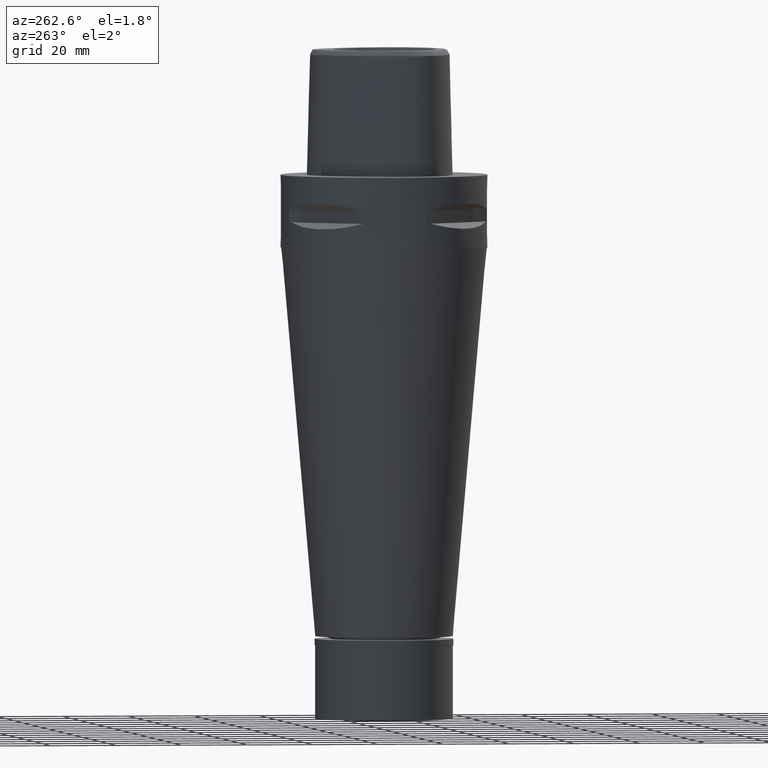
[diagram: clean part render]
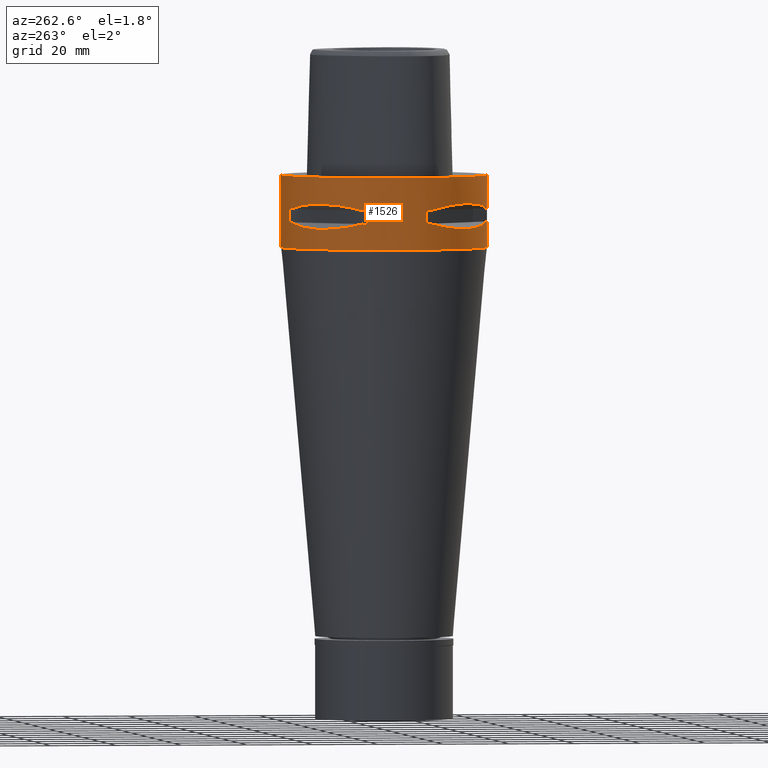
[diagram: same view with one face highlighted and labeled with its STEP entity id]
A machine part, auxiliary view. The second image highlights one B-rep face of the part: STEP entity #1526.
In plain terms, the highlighted cylindrical surface (partial cylindrical patch) has radius 31.5 mm, axis along (0, 0, -1).
Its self-contained STEP definition (entity closure, byte-faithful):
#10 = CARTESIAN_POINT ( 'NONE',  ( -29.31542262584164504, -11.58970337495982328, -14.35229357167352049 ) ) ;
#29 = CARTESIAN_POINT ( 'NONE',  ( -28.91382665368951876, 12.73197616788052500, -14.65467361753852060 ) ) ;
#41 = DIRECTION ( 'NONE',  ( 0.0000000000000000000, 0.0000000000000000000, -1.000000000000000000 ) ) ;
#47 = DIRECTION ( 'NONE',  ( -0.3316748332540863653, 0.9433937698468619626, 0.0000000000000000000 ) ) ;
#66 = DIRECTION ( 'NONE',  ( -0.9584925938322735872, -0.2851174276831918153, 0.0000000000000000000 ) ) ;
#89 = ORIENTED_EDGE ( 'NONE', *, *, #610, .T. ) ;
#107 = CIRCLE ( 'NONE', #4019, 31.50000000000000711 ) ;
#167 = B_SPLINE_CURVE_WITH_KNOTS ( 'NONE', 3,
 ( #5047, #2629, #3066, #3764, #1530, #1107, #5023, #2599, #3818, #4200 ),
 .UNSPECIFIED., .F., .F.,
 ( 4, 2, 2, 2, 4 ),
 ( 0.0000000000000000000, 0.2500000000000000000, 0.5000000000000000000, 0.7500000000000000000, 1.000000000000000000 ),
 .UNSPECIFIED. ) ;
#168 = ORIENTED_EDGE ( 'NONE', *, *, #2983, .T. ) ;
#172 = CARTESIAN_POINT ( 'NONE',  ( -30.19251670572000279, 8.981198972017999438, -9.950000000000001066 ) ) ;
#250 = CIRCLE ( 'NONE', #918, 31.50000000000000711 ) ;
#259 = CARTESIAN_POINT ( 'NONE',  ( -10.44775724750000023, 29.71690375017999841, -14.05000000000000071 ) ) ;
#264 = EDGE_CURVE ( 'NONE', #4474, #3097, #5006, .T. ) ;
#310 = DIRECTION ( 'NONE',  ( 0.0000000000000000000, 0.0000000000000000000, -1.000000000000000000 ) ) ;
#334 = CARTESIAN_POINT ( 'NONE',  ( -27.11872488588860008, -16.03138450079452682, -15.26880420107959146 ) ) ;
#365 = CARTESIAN_POINT ( 'NONE',  ( -26.70521063584408950, -16.70616724746141202, -15.37546661817775373 ) ) ;
#406 = CARTESIAN_POINT ( 'NONE',  ( -26.48642424310478205, 17.05047092244226903, -15.42670883407652305 ) ) ;
#411 = VERTEX_POINT ( 'NONE', #3479 ) ;
#412 = ORIENTED_EDGE ( 'NONE', *, *, #3881, .T. ) ;
#427 = VERTEX_POINT ( 'NONE', #440 ) ;
#440 = CARTESIAN_POINT ( 'NONE',  ( -8.981198972017999438, 30.19251670572000279, -14.05000000000000071 ) ) ;
#459 = CARTESIAN_POINT ( 'NONE',  ( -30.19251670572000279, -8.981198972017999438, -14.05000000000000071 ) ) ;
#478 = VERTEX_POINT ( 'NONE', #172 ) ;
#479 = DIRECTION ( 'NONE',  ( -0.9433937698468619626, -0.3316748332540863653, 0.0000000000000000000 ) ) ;
#483 = CARTESIAN_POINT ( 'NONE',  ( -23.90617837147174640, -20.64154884328075212, -8.160627831309682279 ) ) ;
#488 = CARTESIAN_POINT ( 'NONE',  ( 0.0000000000000000000, 31.50000000000000000, 0.0000000000000000000 ) ) ;
#531 = CARTESIAN_POINT ( 'NONE',  ( 0.0000000000000000000, 0.0000000000000000000, -22.00000000000000000 ) ) ;
#570 = CARTESIAN_POINT ( 'NONE',  ( -8.981198972017999438, -30.19251670572000279, -9.950000000000001066 ) ) ;
#584 = CIRCLE ( 'NONE', #4841, 31.50000000000001776 ) ;
#610 = EDGE_CURVE ( 'NONE', #3657, #4400, #250, .T. ) ;
#612 = ORIENTED_EDGE ( 'NONE', *, *, #1086, .T. ) ;
#616 = CARTESIAN_POINT ( 'NONE',  ( 0.0000000000000000000, 0.0000000000000000000, -14.05000000000000071 ) ) ;
#672 = CARTESIAN_POINT ( 'NONE',  ( -14.89252659056261052, -27.86285265926905197, -15.10765629751539230 ) ) ;
#710 = CARTESIAN_POINT ( 'NONE',  ( -16.80193241490601253, 26.64486562695759631, -15.38992683735703437 ) ) ;
#718 = CARTESIAN_POINT ( 'NONE',  ( -29.71690375017999841, -10.44775724750000023, -14.05000000000000071 ) ) ;
#723 = DIRECTION ( 'NONE',  ( 0.0000000000000000000, -1.000000000000000000, 0.0000000000000000000 ) ) ;
#725 = AXIS2_PLACEMENT_3D ( 'NONE', #616, #4533, #1411 ) ;
#729 = CYLINDRICAL_SURFACE ( 'NONE', #3626, 31.50000000000000000 ) ;
#747 = CARTESIAN_POINT ( 'NONE',  ( -20.18579225686149314, -24.23018836745477245, -15.78559396979075125 ) ) ;
#761 = CARTESIAN_POINT ( 'NONE',  ( 0.0000000000000000000, 0.0000000000000000000, -9.950000000000001066 ) ) ;
#778 = ORIENTED_EDGE ( 'NONE', *, *, #4176, .T. ) ;
#850 = ORIENTED_EDGE ( 'NONE', *, *, #1740, .F. ) ;
#859 = CARTESIAN_POINT ( 'NONE',  ( 0.0000000000000000000, 0.0000000000000000000, -14.05000000000000071 ) ) ;
#877 = VERTEX_POINT ( 'NONE', #4625 ) ;
#881 = DIRECTION ( 'NONE',  ( 0.0000000000000000000, 0.0000000000000000000, 1.000000000000000000 ) ) ;
#902 = ORIENTED_EDGE ( 'NONE', *, *, #1364, .T. ) ;
#918 = AXIS2_PLACEMENT_3D ( 'NONE', #2447, #1229, #2882 ) ;
#954 = DIRECTION ( 'NONE',  ( -0.2851174276831918153, 0.9584925938322735872, 0.0000000000000000000 ) ) ;
#1010 = ORIENTED_EDGE ( 'NONE', *, *, #264, .F. ) ;
#1026 = CARTESIAN_POINT ( 'NONE',  ( -11.58970337494912251, 29.31542262584540737, -14.35229357167066233 ) ) ;
#1086 = EDGE_CURVE ( 'NONE', #4889, #2898, #1330, .T. ) ;
#1091 = CARTESIAN_POINT ( 'NONE',  ( -17.14106442934748742, -26.42800887047532754, -15.43984550238493547 ) ) ;
#1104 = CARTESIAN_POINT ( 'NONE',  ( -16.86571563436660171, 26.60451452154748608, -15.39949295786010097 ) ) ;
#1107 = CARTESIAN_POINT ( 'NONE',  ( -23.90617837147173930, 20.64154884328075923, -8.160613588465018609 ) ) ;
#1114 = CARTESIAN_POINT ( 'NONE',  ( -23.89673728055697310, -20.65093790435582122, -15.83935804901768307 ) ) ;
#1138 = CARTESIAN_POINT ( 'NONE',  ( -17.76952662671988392, -26.01217882834739470, -15.52665221626113912 ) ) ;
#1148 = FACE_BOUND ( 'NONE', #1696, .T. ) ;
#1157 = VECTOR ( 'NONE', #2820, 1000.000000000000000 ) ;
#1166 = CARTESIAN_POINT ( 'NONE',  ( -10.44775724750000023, -29.71690375017999841, -14.05000000000000071 ) ) ;
#1176 = AXIS2_PLACEMENT_3D ( 'NONE', #859, #1598, #479 ) ;
#1229 = DIRECTION ( 'NONE',  ( 0.0000000000000000000, 0.0000000000000000000, 1.000000000000000000 ) ) ;
#1242 = CARTESIAN_POINT ( 'NONE',  ( -30.19251670572000279, 8.981198972019999616, -14.05000000000000071 ) ) ;
#1246 = VECTOR ( 'NONE', #3136, 1000.000000000000000 ) ;
#1254 = CARTESIAN_POINT ( 'NONE',  ( -28.92474506844683901, -12.70092055730904690, -9.353547358226721897 ) ) ;
#1279 = EDGE_LOOP ( 'NONE', ( #89, #1334, #168, #4571, #778, #850, #4936, #412 ) ) ;
#1310 = CIRCLE ( 'NONE', #725, 31.50000000000001776 ) ;
#1330 = LINE ( 'NONE', #488, #1805 ) ;
#1334 = ORIENTED_EDGE ( 'NONE', *, *, #3469, .F. ) ;
#1364 = EDGE_CURVE ( 'NONE', #877, #478, #107, .T. ) ;
#1372 = LINE ( 'NONE', #3214, #1157 ) ;
#1390 = CARTESIAN_POINT ( 'NONE',  ( -10.44775724750000023, -29.71690375017999841, -9.949999999998999201 ) ) ;
#1411 = DIRECTION ( 'NONE',  ( -0.9584925938322735872, 0.2851174276831918153, 0.0000000000000000000 ) ) ;
#1499 = CARTESIAN_POINT ( 'NONE',  ( -26.54368690921645069, 16.96123479564930747, -15.41365572341317147 ) ) ;
#1516 = EDGE_CURVE ( 'NONE', #4474, #427, #4914, .T. ) ;
#1526 = ADVANCED_FACE ( 'NONE', ( #2669, #1148, #4238 ), #729, .T. ) ;
#1530 = CARTESIAN_POINT ( 'NONE',  ( -20.64154884328076989, 23.90617837147172864, -8.160627831309682279 ) ) ;
#1538 = LINE ( 'NONE', #2719, #1246 ) ;
#1540 = VECTOR ( 'NONE', #41, 1000.000000000000000 ) ;
#1573 = VERTEX_POINT ( 'NONE', #3969 ) ;
#1591 = VERTEX_POINT ( 'NONE', #459 ) ;
#1598 = DIRECTION ( 'NONE',  ( 0.0000000000000000000, 0.0000000000000000000, -1.000000000000000000 ) ) ;
#1605 = CARTESIAN_POINT ( 'NONE',  ( -16.03138450078630584, 27.11872488589149199, -15.26880420107739234 ) ) ;
#1622 = DIRECTION ( 'NONE',  ( -0.2851174276831918153, -0.9584925938322735872, 0.0000000000000000000 ) ) ;
#1696 = EDGE_LOOP ( 'NONE', ( #902, #4568, #2127, #1010, #3320, #2313, #2839, #2393 ) ) ;
#1740 = EDGE_CURVE ( 'NONE', #2030, #1591, #1372, .T. ) ;
#1758 = CARTESIAN_POINT ( 'NONE',  ( -10.44775724750000023, -29.71690375017999841, -9.949999999998999201 ) ) ;
#1805 = VECTOR ( 'NONE', #4383, 1000.000000000000000 ) ;
#1841 = CARTESIAN_POINT ( 'NONE',  ( -26.64486562695712379, -16.80193241490734835, -15.38992683735741451 ) ) ;
#1875 = ORIENTED_EDGE ( 'NONE', *, *, #4105, .T. ) ;
#1884 = CARTESIAN_POINT ( 'NONE',  ( -29.71690375017999841, 10.44775724750000023, -14.05000000000000071 ) ) ;
#1892 = AXIS2_PLACEMENT_3D ( 'NONE', #3553, #3942, #47 ) ;
#1900 = CARTESIAN_POINT ( 'NONE',  ( -26.60451452154724805, -16.86571563436727317, -15.39949295786030348 ) ) ;
#1908 = CARTESIAN_POINT ( 'NONE',  ( 0.0000000000000000000, 0.0000000000000000000, 7.875000000000000000 ) ) ;
#1946 = CARTESIAN_POINT ( 'NONE',  ( -27.64634172017658642, -15.11986997311774417, -15.11207862404057423 ) ) ;
#1953 = CIRCLE ( 'NONE', #2925, 31.50000000000001776 ) ;
#1984 = DIRECTION ( 'NONE',  ( 0.0000000000000000000, 0.0000000000000000000, -1.000000000000000000 ) ) ;
#2005 = CARTESIAN_POINT ( 'NONE',  ( -8.981198972019999616, -30.19251670572000279, -14.05000000000000071 ) ) ;
#2030 = VERTEX_POINT ( 'NONE', #4250 ) ;
#2065 = CARTESIAN_POINT ( 'NONE',  ( -27.88214534470564132, -14.84422749199033120, -8.906206096497937708 ) ) ;
#2082 = DIRECTION ( 'NONE',  ( 0.0000000000000000000, 0.0000000000000000000, 1.000000000000000000 ) ) ;
#2099 = DIRECTION ( 'NONE',  ( 0.0000000000000000000, 0.0000000000000000000, 1.000000000000000000 ) ) ;
#2127 = ORIENTED_EDGE ( 'NONE', *, *, #4810, .T. ) ;
#2129 = CARTESIAN_POINT ( 'NONE',  ( -20.64154884328073081, -23.90617837147176061, -8.160613588465020385 ) ) ;
#2174 = CARTESIAN_POINT ( 'NONE',  ( -29.71690375017999841, 10.44775724750000023, -14.05000000000000071 ) ) ;
#2209 = EDGE_CURVE ( 'NONE', #3140, #478, #4399, .T. ) ;
#2284 = DIRECTION ( 'NONE',  ( 0.0000000000000000000, 0.0000000000000000000, -1.000000000000000000 ) ) ;
#2291 = CARTESIAN_POINT ( 'NONE',  ( -13.25636937904505785, 28.62019653468586355, -14.74888225541535292 ) ) ;
#2306 = CARTESIAN_POINT ( 'NONE',  ( -18.59229662065117594, -25.43927894891756125, -15.62866126334438732 ) ) ;
#2313 = ORIENTED_EDGE ( 'NONE', *, *, #3150, .F. ) ;
#2316 = DIRECTION ( 'NONE',  ( 0.0000000000000000000, -1.000000000000000000, 0.0000000000000000000 ) ) ;
#2320 = CARTESIAN_POINT ( 'NONE',  ( -18.86897208075099996, 25.32725744466366891, -15.69588095933659488 ) ) ;
#2393 = ORIENTED_EDGE ( 'NONE', *, *, #5033, .T. ) ;
#2414 = CARTESIAN_POINT ( 'NONE',  ( 0.0000000000000000000, 0.0000000000000000000, -9.950000000000001066 ) ) ;
#2447 = CARTESIAN_POINT ( 'NONE',  ( 0.0000000000000000000, 0.0000000000000000000, -9.950000000000001066 ) ) ;
#2475 = CIRCLE ( 'NONE', #1176, 31.50000000000000711 ) ;
#2483 = CARTESIAN_POINT ( 'NONE',  ( -10.44775724750000023, 29.71690375017999841, -9.949999999998999201 ) ) ;
#2506 = CARTESIAN_POINT ( 'NONE',  ( -10.44775724750000023, -29.71690375017999841, -14.05000000000000071 ) ) ;
#2543 = VECTOR ( 'NONE', #2099, 1000.000000000000000 ) ;
#2553 = VERTEX_POINT ( 'NONE', #4467 ) ;
#2599 = CARTESIAN_POINT ( 'NONE',  ( -27.88210502983991645, 14.84430321578710199, -8.906184731967039525 ) ) ;
#2629 = CARTESIAN_POINT ( 'NONE',  ( -12.70092055730904868, 28.92474506844682125, -9.353547358226720121 ) ) ;
#2650 = CARTESIAN_POINT ( 'NONE',  ( -15.11986997310366299, 27.64634172018154246, -15.11207862403683144 ) ) ;
#2669 = FACE_OUTER_BOUND ( 'NONE', #5028, .T. ) ;
#2682 = CARTESIAN_POINT ( 'NONE',  ( -16.96123479564944247, -26.54368690921640450, -15.41365572341321766 ) ) ;
#2703 = AXIS2_PLACEMENT_3D ( 'NONE', #5059, #310, #723 ) ;
#2717 = CARTESIAN_POINT ( 'NONE',  ( -12.73197616787212993, -28.91382665369246752, -14.65467361753630549 ) ) ;
#2719 = CARTESIAN_POINT ( 'NONE',  ( -8.981198972017999438, 30.19251670572000279, -9.950000000000001066 ) ) ;
#2731 = CARTESIAN_POINT ( 'NONE',  ( -16.89910283486523923, 26.58330558444462355, -15.40446471307224741 ) ) ;
#2747 = EDGE_CURVE ( 'NONE', #3342, #4889, #4182, .T. ) ;
#2782 = VECTOR ( 'NONE', #3971, 1000.000000000000000 ) ;
#2791 = LINE ( 'NONE', #4777, #1540 ) ;
#2793 = CIRCLE ( 'NONE', #3537, 31.50000000000000000 ) ;
#2820 = DIRECTION ( 'NONE',  ( 0.0000000000000000000, 0.0000000000000000000, -1.000000000000000000 ) ) ;
#2839 = ORIENTED_EDGE ( 'NONE', *, *, #4783, .T. ) ;
#2882 = DIRECTION ( 'NONE',  ( -0.3316748332540863653, -0.9433937698468619626, 0.0000000000000000000 ) ) ;
#2898 = VERTEX_POINT ( 'NONE', #3600 ) ;
#2925 = AXIS2_PLACEMENT_3D ( 'NONE', #3213, #881, #954 ) ;
#2962 = CARTESIAN_POINT ( 'NONE',  ( -10.44775724750000023, 29.71690375017999841, -14.05000000000000071 ) ) ;
#2966 = B_SPLINE_CURVE_WITH_KNOTS ( 'NONE', 3,
 ( #4762, #1254, #2065, #4378, #483, #2129, #4858, #3370, #3703, #1390 ),
 .UNSPECIFIED., .F., .F.,
 ( 4, 2, 2, 2, 4 ),
 ( 0.0000000000000000000, 0.2500000000000000555, 0.5000000000000001110, 0.7500000000000002220, 1.000000000000000000 ),
 .UNSPECIFIED. ) ;
#2983 = EDGE_CURVE ( 'NONE', #3272, #4786, #584, .T. ) ;
#2994 = CARTESIAN_POINT ( 'NONE',  ( -17.35163608579770766, -26.29071741523690875, -15.46976201925451022 ) ) ;
#3063 = CARTESIAN_POINT ( 'NONE',  ( -23.08532645888177015, 21.46242677077824368, -15.83938991065229196 ) ) ;
#3066 = CARTESIAN_POINT ( 'NONE',  ( -14.84422749199032943, 27.88214534470564132, -8.906206096497939484 ) ) ;
#3089 = CARTESIAN_POINT ( 'NONE',  ( -24.23018836745557181, 20.18579225685711265, -15.78559396978928397 ) ) ;
#3097 = VERTEX_POINT ( 'NONE', #2174 ) ;
#3100 = CARTESIAN_POINT ( 'NONE',  ( -26.84474411198545596, -16.48208282229538213, -15.34094883778132790 ) ) ;
#3119 = CARTESIAN_POINT ( 'NONE',  ( -26.42800887047543767, 17.14106442934696162, -15.43984550238475251 ) ) ;
#3136 = DIRECTION ( 'NONE',  ( 0.0000000000000000000, 0.0000000000000000000, -1.000000000000000000 ) ) ;
#3140 = VERTEX_POINT ( 'NONE', #1242 ) ;
#3150 = EDGE_CURVE ( 'NONE', #1573, #427, #1538, .T. ) ;
#3167 = DIRECTION ( 'NONE',  ( 0.0000000000000000000, 0.0000000000000000000, 1.000000000000000000 ) ) ;
#3189 = CARTESIAN_POINT ( 'NONE',  ( 0.0000000000000000000, 0.0000000000000000000, -14.05000000000000071 ) ) ;
#3213 = CARTESIAN_POINT ( 'NONE',  ( 0.0000000000000000000, 0.0000000000000000000, -9.950000000000001066 ) ) ;
#3214 = CARTESIAN_POINT ( 'NONE',  ( -30.19251670572000279, -8.981198972017999438, -9.950000000000001066 ) ) ;
#3263 = CARTESIAN_POINT ( 'NONE',  ( 0.0000000000000000000, 31.50000000000000000, 0.0000000000000000000 ) ) ;
#3264 = CARTESIAN_POINT ( 'NONE',  ( -8.981198972017999438, -30.19251670572000279, -14.05000000000000071 ) ) ;
#3272 = VERTEX_POINT ( 'NONE', #2005 ) ;
#3320 = ORIENTED_EDGE ( 'NONE', *, *, #1516, .T. ) ;
#3342 = VERTEX_POINT ( 'NONE', #4082 ) ;
#3370 = CARTESIAN_POINT ( 'NONE',  ( -14.84430321578705225, -27.88210502983994843, -8.906184731967043078 ) ) ;
#3456 = CARTESIAN_POINT ( 'NONE',  ( -20.65093790435489396, 23.89673728056195756, -15.83935804901932087 ) ) ;
#3465 = CARTESIAN_POINT ( 'NONE',  ( -26.58330558444475145, -16.89910283486517528, -15.40446471307230070 ) ) ;
#3469 = EDGE_CURVE ( 'NONE', #3272, #4400, #4039, .T. ) ;
#3475 = DIRECTION ( 'NONE',  ( -0.9433937698468619626, 0.3316748332540863653, 0.0000000000000000000 ) ) ;
#3479 = CARTESIAN_POINT ( 'NONE',  ( 0.0000000000000000000, -31.50000000000000000, -22.00000000000000000 ) ) ;
#3487 = CARTESIAN_POINT ( 'NONE',  ( -28.62019653467925551, -13.25636937906381974, -14.74888225542034448 ) ) ;
#3537 = AXIS2_PLACEMENT_3D ( 'NONE', #531, #2082, #3650 ) ;
#3553 = CARTESIAN_POINT ( 'NONE',  ( 0.0000000000000000000, 0.0000000000000000000, -14.05000000000000071 ) ) ;
#3558 = CARTESIAN_POINT ( 'NONE',  ( -16.70616724745912407, 26.70521063584489596, -15.37546661817712490 ) ) ;
#3563 = VERTEX_POINT ( 'NONE', #2483 ) ;
#3600 = CARTESIAN_POINT ( 'NONE',  ( 0.0000000000000000000, 31.50000000000000000, -22.00000000000000000 ) ) ;
#3617 = VERTEX_POINT ( 'NONE', #4124 ) ;
#3626 = AXIS2_PLACEMENT_3D ( 'NONE', #1908, #2284, #2316 ) ;
#3650 = DIRECTION ( 'NONE',  ( 0.0000000000000000000, 1.000000000000000000, 0.0000000000000000000 ) ) ;
#3657 = VERTEX_POINT ( 'NONE', #1758 ) ;
#3703 = CARTESIAN_POINT ( 'NONE',  ( -12.70097436183466932, -28.92472615205409525, -9.353533115206118964 ) ) ;
#3764 = CARTESIAN_POINT ( 'NONE',  ( -18.81455742163205613, 25.37277178168286085, -8.309746333127387530 ) ) ;
#3818 = CARTESIAN_POINT ( 'NONE',  ( -28.92472615205406683, 12.70097436183471018, -9.353533115206120740 ) ) ;
#3877 = CARTESIAN_POINT ( 'NONE',  ( -25.32725744465475515, -18.86897208075581034, -15.69588095933493932 ) ) ;
#3881 = EDGE_CURVE ( 'NONE', #2553, #3657, #2966, .T. ) ;
#3891 = CARTESIAN_POINT ( 'NONE',  ( -26.01217882834774997, 17.76952662671796901, -15.52665221626049608 ) ) ;
#3942 = DIRECTION ( 'NONE',  ( 0.0000000000000000000, 0.0000000000000000000, -1.000000000000000000 ) ) ;
#3964 = DIRECTION ( 'NONE',  ( 0.0000000000000000000, 0.0000000000000000000, 1.000000000000000000 ) ) ;
#3969 = CARTESIAN_POINT ( 'NONE',  ( -8.981198972019999616, 30.19251670572000279, -9.950000000000001066 ) ) ;
#3971 = DIRECTION ( 'NONE',  ( 0.0000000000000000000, 0.0000000000000000000, 1.000000000000000000 ) ) ;
#4019 = AXIS2_PLACEMENT_3D ( 'NONE', #761, #3167, #3475 ) ;
#4039 = LINE ( 'NONE', #3264, #2543 ) ;
#4082 = CARTESIAN_POINT ( 'NONE',  ( 0.0000000000000000000, -31.50000000000000000, 0.0000000000000000000 ) ) ;
#4105 = EDGE_CURVE ( 'NONE', #2898, #411, #2793, .T. ) ;
#4117 = EDGE_CURVE ( 'NONE', #2030, #2553, #4769, .T. ) ;
#4124 = CARTESIAN_POINT ( 'NONE',  ( -29.71690375017999841, -10.44775724750000023, -14.05000000000000071 ) ) ;
#4126 = ORIENTED_EDGE ( 'NONE', *, *, #4703, .F. ) ;
#4176 = EDGE_CURVE ( 'NONE', #3617, #1591, #2475, .T. ) ;
#4182 = CIRCLE ( 'NONE', #2703, 31.50000000000000000 ) ;
#4189 = AXIS2_PLACEMENT_3D ( 'NONE', #2414, #3964, #66 ) ;
#4200 = CARTESIAN_POINT ( 'NONE',  ( -29.71690375017999841, 10.44775724750000023, -9.949999999998999201 ) ) ;
#4220 = CARTESIAN_POINT ( 'NONE',  ( -27.86285265926610322, 14.89252659057099493, -15.10765629751760031 ) ) ;
#4238 = FACE_BOUND ( 'NONE', #1279, .T. ) ;
#4250 = CARTESIAN_POINT ( 'NONE',  ( -30.19251670572000279, -8.981198972019999616, -9.950000000000001066 ) ) ;
#4303 = CARTESIAN_POINT ( 'NONE',  ( -16.48208282229096611, 26.84474411198699784, -15.34094883778013596 ) ) ;
#4320 = B_SPLINE_CURVE_WITH_KNOTS ( 'NONE', 3,
 ( #718, #10, #3487, #1946, #334, #3100, #365, #1841, #1900, #3465, #3877, #1114, #4974, #747, #2306, #1138, #2994, #1091, #5031, #4669, #2682, #672, #2717, #1166 ),
 .UNSPECIFIED., .F., .F.,
 ( 4, 1, 1, 1, 1, 1, 2, 2, 2, 1, 1, 1, 1, 1, 2, 2, 4 ),
 ( 0.0000000000000000000, 0.1249999999999912292, 0.1874999999999869826, 0.2187499999999850120, 0.2343749999999839295, 0.2421874999999835409, 0.2460937499999835687, 0.2499999999999836242, 0.4999999999999924505, 0.6249999999999968914, 0.6874999999999992228, 0.7187500000000003331, 0.7343750000000009992, 0.7421875000000014433, 0.7460937500000016653, 0.7500000000000019984, 1.000000000000000000 ),
 .UNSPECIFIED. ) ;
#4328 = CARTESIAN_POINT ( 'NONE',  ( -26.29071741523710060, 17.35163608579668804, -15.46976201925415317 ) ) ;
#4378 = CARTESIAN_POINT ( 'NONE',  ( -25.37277178168283598, -18.81455742163207390, -8.309746333127385753 ) ) ;
#4383 = DIRECTION ( 'NONE',  ( 0.0000000000000000000, 0.0000000000000000000, -1.000000000000000000 ) ) ;
#4399 = LINE ( 'NONE', #4763, #2782 ) ;
#4400 = VERTEX_POINT ( 'NONE', #570 ) ;
#4467 = CARTESIAN_POINT ( 'NONE',  ( -29.71690375017999841, -10.44775724750000023, -9.949999999998999201 ) ) ;
#4474 = VERTEX_POINT ( 'NONE', #259 ) ;
#4533 = DIRECTION ( 'NONE',  ( 0.0000000000000000000, 0.0000000000000000000, -1.000000000000000000 ) ) ;
#4542 = ORIENTED_EDGE ( 'NONE', *, *, #2747, .T. ) ;
#4557 = EDGE_CURVE ( 'NONE', #3617, #4786, #4320, .T. ) ;
#4568 = ORIENTED_EDGE ( 'NONE', *, *, #2209, .F. ) ;
#4571 = ORIENTED_EDGE ( 'NONE', *, *, #4557, .F. ) ;
#4625 = CARTESIAN_POINT ( 'NONE',  ( -29.71690375017999841, 10.44775724750000023, -9.949999999998999201 ) ) ;
#4669 = CARTESIAN_POINT ( 'NONE',  ( -16.98999780422078132, -26.52527364208593141, -15.41788098766319060 ) ) ;
#4703 = EDGE_CURVE ( 'NONE', #3342, #411, #2791, .T. ) ;
#4762 = CARTESIAN_POINT ( 'NONE',  ( -29.71690375017999841, -10.44775724750000023, -9.949999999998999201 ) ) ;
#4763 = CARTESIAN_POINT ( 'NONE',  ( -30.19251670572000279, 8.981198972017999438, -14.05000000000000071 ) ) ;
#4769 = CIRCLE ( 'NONE', #4189, 31.50000000000001776 ) ;
#4777 = CARTESIAN_POINT ( 'NONE',  ( 0.0000000000000000000, -31.50000000000000000, 0.0000000000000000000 ) ) ;
#4783 = EDGE_CURVE ( 'NONE', #1573, #3563, #1953, .T. ) ;
#4786 = VERTEX_POINT ( 'NONE', #2506 ) ;
#4810 = EDGE_CURVE ( 'NONE', #3140, #3097, #1310, .T. ) ;
#4841 = AXIS2_PLACEMENT_3D ( 'NONE', #3189, #1984, #1622 ) ;
#4858 = CARTESIAN_POINT ( 'NONE',  ( -18.81462633032053233, -25.37272068398778302, -8.309724968596492900 ) ) ;
#4889 = VERTEX_POINT ( 'NONE', #3263 ) ;
#4914 = CIRCLE ( 'NONE', #1892, 31.50000000000000711 ) ;
#4936 = ORIENTED_EDGE ( 'NONE', *, *, #4117, .T. ) ;
#4974 = CARTESIAN_POINT ( 'NONE',  ( -21.46242677078074834, -23.08532645888130830, -15.83938991065315172 ) ) ;
#5006 = B_SPLINE_CURVE_WITH_KNOTS ( 'NONE', 3,
 ( #2962, #1026, #2291, #2650, #1605, #4303, #3558, #710, #1104, #2731, #2320, #3456, #3063, #3089, #5044, #3891, #4328, #3119, #406, #5020, #1499, #4220, #29, #1884 ),
 .UNSPECIFIED., .F., .F.,
 ( 4, 1, 1, 1, 1, 1, 2, 2, 2, 1, 1, 1, 1, 1, 2, 2, 4 ),
 ( 0.0000000000000000000, 0.1249999999999917843, 0.1874999999999877320, 0.2187499999999857059, 0.2343749999999849287, 0.2421874999999843736, 0.2460937499999842071, 0.2499999999999840128, 0.4999999999999846789, 0.6249999999999850120, 0.6874999999999850120, 0.7187499999999851230, 0.7343749999999852340, 0.7421874999999852340, 0.7460937499999851230, 0.7499999999999851230, 1.000000000000000000 ),
 .UNSPECIFIED. ) ;
#5020 = CARTESIAN_POINT ( 'NONE',  ( -26.52527364208594562, 16.98999780422062500, -15.41788098766312487 ) ) ;
#5023 = CARTESIAN_POINT ( 'NONE',  ( -25.37272068398776170, 18.81462633032056431, -8.309724968596491124 ) ) ;
#5028 = EDGE_LOOP ( 'NONE', ( #1875, #4126, #4542, #612 ) ) ;
#5031 = CARTESIAN_POINT ( 'NONE',  ( -17.05047092244258522, -26.48642424310472876, -15.42670883407663496 ) ) ;
#5033 = EDGE_CURVE ( 'NONE', #3563, #877, #167, .T. ) ;
#5044 = CARTESIAN_POINT ( 'NONE',  ( -25.43927894891815811, 18.59229662064788258, -15.62866126334327710 ) ) ;
#5047 = CARTESIAN_POINT ( 'NONE',  ( -10.44775724750000023, 29.71690375017999841, -9.949999999998999201 ) ) ;
#5059 = CARTESIAN_POINT ( 'NONE',  ( 0.0000000000000000000, 0.0000000000000000000, 0.0000000000000000000 ) ) ;